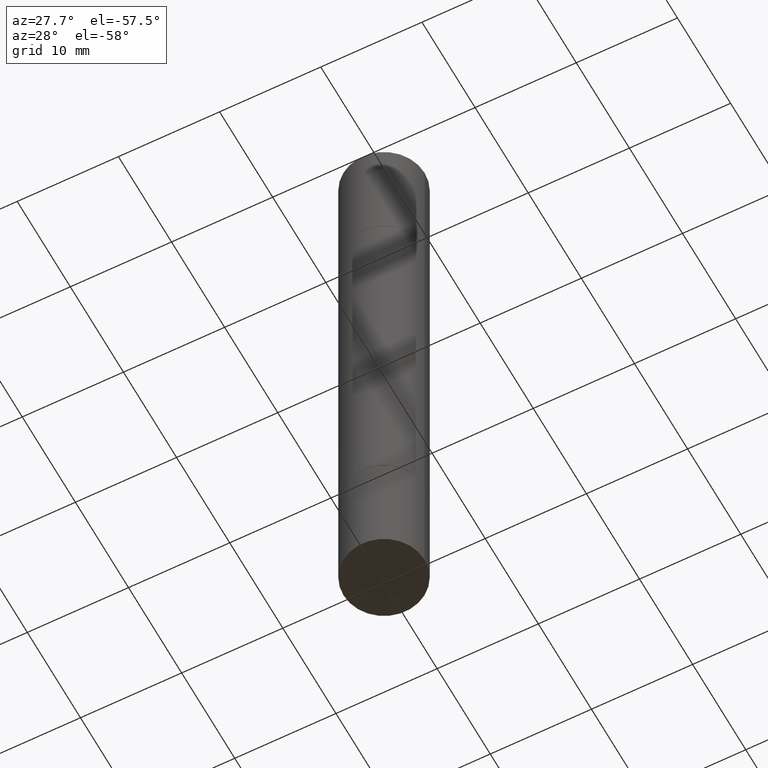
[diagram: clean part render]
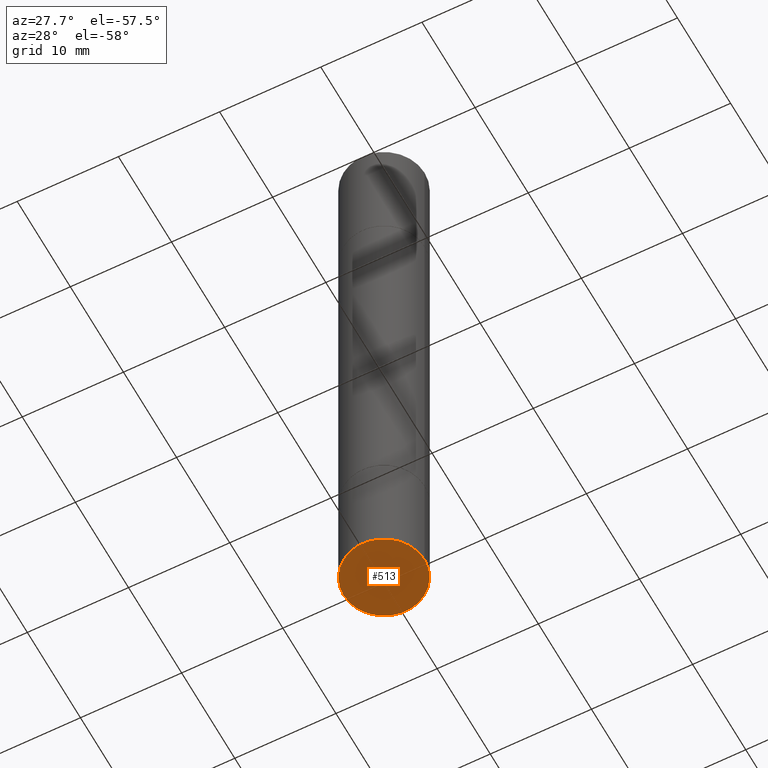
[diagram: same view with one face highlighted and labeled with its STEP entity id]
A machine part, auxiliary view. The second image highlights one B-rep face of the part: STEP entity #513.
In plain terms, the highlighted planar face has unit normal (0, -0, -1).
Its self-contained STEP definition (entity closure, byte-faithful):
#29 = CARTESIAN_POINT ( 'NONE',  ( 6.065496279980994755E-29, -8.659921164732655335E-15, -2.480300000000000171 ) ) ;
#71 = EDGE_CURVE ( 'NONE', #308, #106, #324, .T. ) ;
#85 = DIRECTION ( 'NONE',  ( -1.000000000000000000, 6.982962677686265922E-15, -4.876176775795935793E-29 ) ) ;
#106 = VERTEX_POINT ( 'NONE', #145 ) ;
#123 = DIRECTION ( 'NONE',  ( -2.445468806185136597E-29, 3.491481338843145583E-15, 1.000000000000000000 ) ) ;
#144 = PLANE ( 'NONE',  #661 ) ;
#145 = CARTESIAN_POINT ( 'NONE',  ( 0.1575000000000000011, -9.759737786468242027E-15, -2.480300000000000171 ) ) ;
#194 = DIRECTION ( 'NONE',  ( 2.438088387897960049E-29, -3.491481338843145188E-15, -1.000000000000000000 ) ) ;
#211 = AXIS2_PLACEMENT_3D ( 'NONE', #347, #123, #647 ) ;
#216 = EDGE_LOOP ( 'NONE', ( #235, #316 ) ) ;
#235 = ORIENTED_EDGE ( 'NONE', *, *, #452, .F. ) ;
#266 = AXIS2_PLACEMENT_3D ( 'NONE', #29, #608, #350 ) ;
#308 = VERTEX_POINT ( 'NONE', #552 ) ;
#316 = ORIENTED_EDGE ( 'NONE', *, *, #71, .F. ) ;
#324 = CIRCLE ( 'NONE', #211, 0.1575000000000000011 ) ;
#347 = CARTESIAN_POINT ( 'NONE',  ( 6.065496279980994755E-29, -8.659921164732655335E-15, -2.480300000000000171 ) ) ;
#350 = DIRECTION ( 'NONE',  ( 1.000000000000000000, -6.982962677686261977E-15, 0.000000000000000000 ) ) ;
#452 = EDGE_CURVE ( 'NONE', #106, #308, #470, .T. ) ;
#470 = CIRCLE ( 'NONE', #266, 0.1575000000000000011 ) ;
#513 = ADVANCED_FACE ( 'NONE', ( #621 ), #144, .T. ) ;
#552 = CARTESIAN_POINT ( 'NONE',  ( -0.1575000000000000011, -6.716128463675745525E-15, -2.480300000000000171 ) ) ;
#571 = CARTESIAN_POINT ( 'NONE',  ( 1.099816621735647434E-15, 0.1574999999999913136, -2.480300000000001059 ) ) ;
#608 = DIRECTION ( 'NONE',  ( -2.445468806185136597E-29, 3.491481338843145583E-15, 1.000000000000000000 ) ) ;
#621 = FACE_OUTER_BOUND ( 'NONE', #216, .T. ) ;
#647 = DIRECTION ( 'NONE',  ( 1.000000000000000000, -6.982962677686261977E-15, 0.000000000000000000 ) ) ;
#661 = AXIS2_PLACEMENT_3D ( 'NONE', #571, #194, #85 ) ;